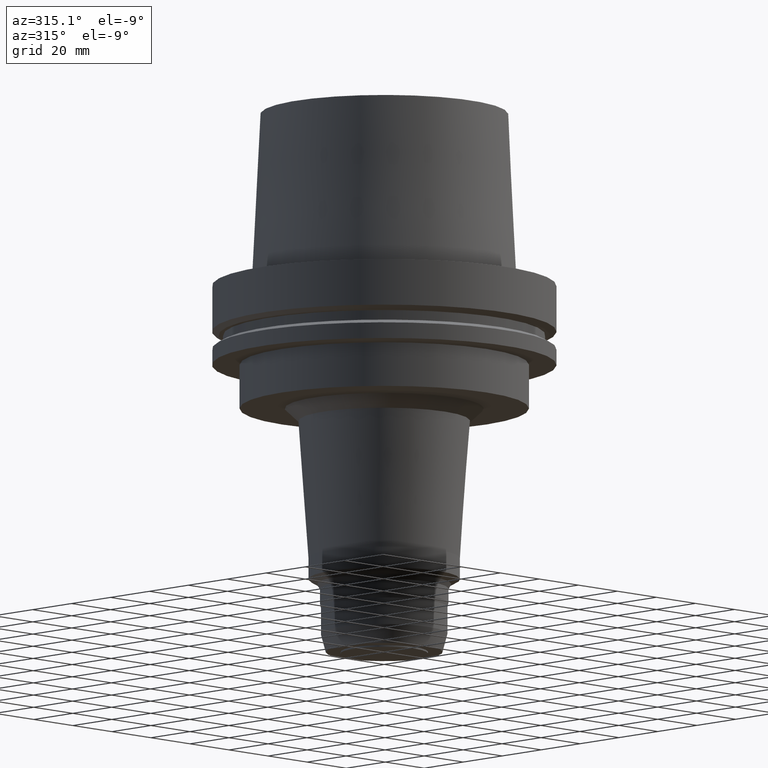
[diagram: clean part render]
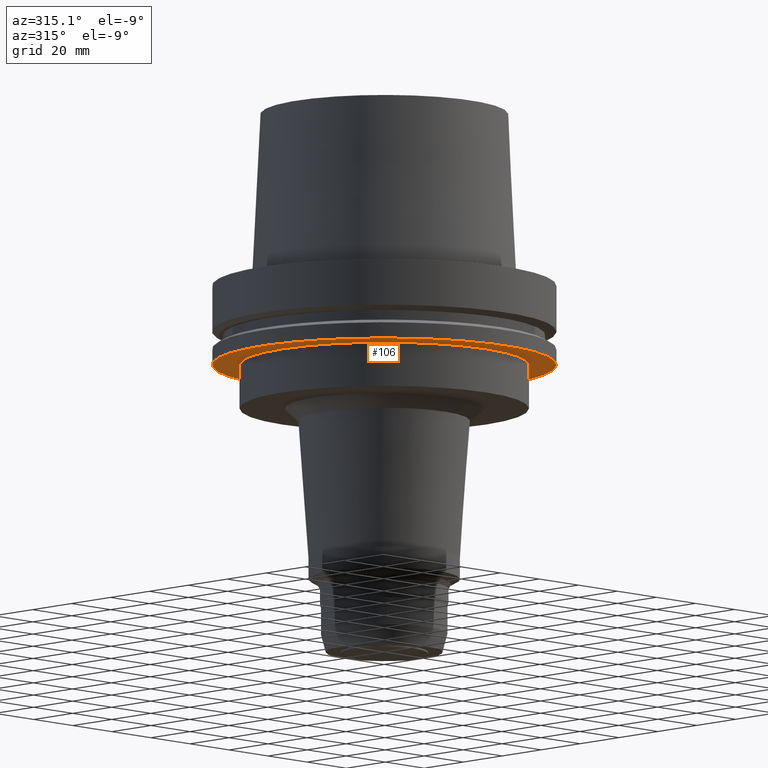
[diagram: same view with one face highlighted and labeled with its STEP entity id]
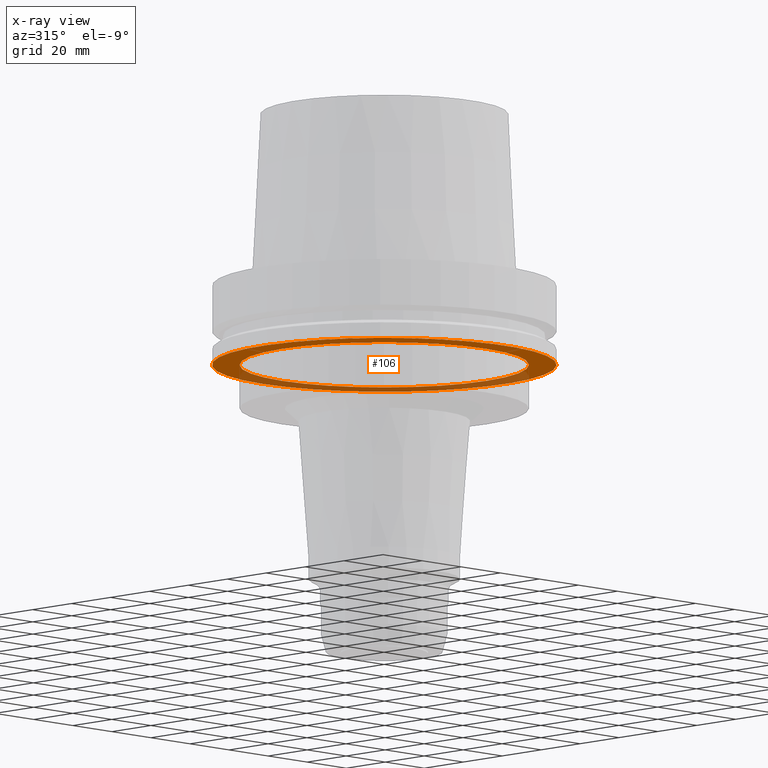
[diagram: x-ray of the same camera — body ghosted, the highlighted face saturated]
A machine part, auxiliary view. The second image highlights one B-rep face of the part: STEP entity #106.
The next image is the same camera in x-ray: the body ghosted, the highlighted face saturated — about 36% of this face is hidden behind the body in this view.
In plain terms, the highlighted planar face has unit normal (0, 0, -1).
Its self-contained STEP definition (entity closure, byte-faithful):
#106=ADVANCED_FACE('Unnamed[1]',(#265,#266),#267,.T.);
#146=EDGE_CURVE('Unnamed[1]',#329,#329,#330,.T.);
#156=EDGE_CURVE('Unnamed[1]',#345,#345,#346,.T.);
#265=FACE_BOUND('',#481,.T.);
#266=FACE_OUTER_BOUND('',#482,.T.);
#267=PLANE('',#483);
#329=VERTEX_POINT('',#562);
#330=CIRCLE('',#563,62.5);
#345=VERTEX_POINT('',#582);
#346=CIRCLE('',#583,52.5000000000003);
#481=EDGE_LOOP('',(#720));
#482=EDGE_LOOP('',(#721));
#483=AXIS2_PLACEMENT_3D('',#722,#723,#724);
#562=CARTESIAN_POINT('',(1.77573785876367E-015,62.5,-29.0000000000001));
#563=AXIS2_PLACEMENT_3D('',#791,#792,#793);
#582=CARTESIAN_POINT('',(1.77573785876367E-015,52.5000000000003,-29.0000000000001));
#583=AXIS2_PLACEMENT_3D('',#809,#810,#811);
#720=ORIENTED_EDGE('',*,*,#156,.F.);
#721=ORIENTED_EDGE('',*,*,#146,.T.);
#722=CARTESIAN_POINT('',(1.77573785876367E-015,57.5000000000001,-29.0000000000001));
#723=DIRECTION('',(6.12323399573677E-017,1.22464679914735E-016,-1.0));
#724=DIRECTION('',(-1.23259516440783E-032,1.0,1.22464679914735E-016));
#791=CARTESIAN_POINT('',(1.77573785876367E-015,3.55147571752733E-015,-29.0000000000001));
#792=DIRECTION('',(6.12323399573677E-017,1.22464679914735E-016,-1.0));
#793=DIRECTION('',(-1.23259516440783E-032,1.0,1.22464679914735E-016));
#809=CARTESIAN_POINT('',(1.77573785876367E-015,3.55147571752733E-015,-29.0000000000001));
#810=DIRECTION('',(6.12323399573677E-017,1.22464679914735E-016,-1.0));
#811=DIRECTION('',(-1.23259516440783E-032,1.0,1.22464679914735E-016));